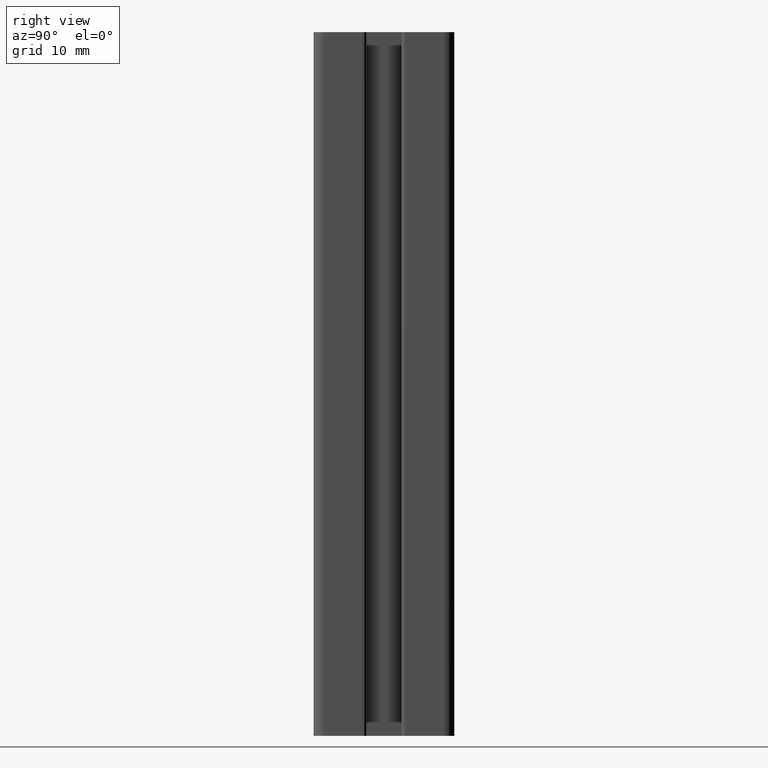
[diagram: clean part render]
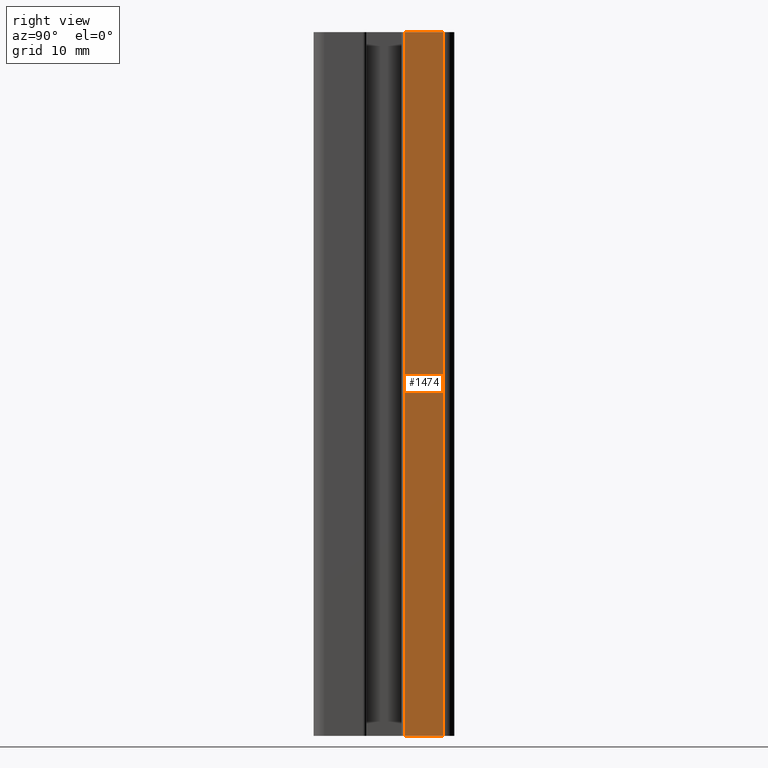
[diagram: same view with one face highlighted and labeled with its STEP entity id]
A machine part, right view. The second image highlights one B-rep face of the part: STEP entity #1474.
In plain terms, the highlighted planar face has unit normal (1, 0, 0).
Its self-contained STEP definition (entity closure, byte-faithful):
#51=PLANE('',#1617);
#122=FACE_OUTER_BOUND('',#198,.T.);
#198=EDGE_LOOP('',(#1197,#1198,#1199,#1200));
#318=LINE('',#2428,#462);
#344=LINE('',#2488,#488);
#345=LINE('',#2490,#489);
#346=LINE('',#2491,#490);
#462=VECTOR('',#1981,100.);
#488=VECTOR('',#2037,5.49999999999999);
#489=VECTOR('',#2038,100.);
#490=VECTOR('',#2039,5.49999999999999);
#690=VERTEX_POINT('',#2422);
#692=VERTEX_POINT('',#2426);
#711=VERTEX_POINT('',#2487);
#712=VERTEX_POINT('',#2489);
#888=EDGE_CURVE('',#690,#692,#318,.T.);
#918=EDGE_CURVE('',#711,#692,#344,.T.);
#919=EDGE_CURVE('',#711,#712,#345,.T.);
#920=EDGE_CURVE('',#712,#690,#346,.T.);
#1197=ORIENTED_EDGE('',*,*,#888,.T.);
#1198=ORIENTED_EDGE('',*,*,#918,.F.);
#1199=ORIENTED_EDGE('',*,*,#919,.T.);
#1200=ORIENTED_EDGE('',*,*,#920,.T.);
#1474=ADVANCED_FACE('',(#122),#51,.T.);
#1617=AXIS2_PLACEMENT_3D('',#2486,#2035,#2036);
#1981=DIRECTION('',(0.,0.,-1.));
#2035=DIRECTION('center_axis',(1.,2.61228946970625E-16,0.));
#2036=DIRECTION('ref_axis',(-1.77635683940025E-16,1.,0.));
#2037=DIRECTION('',(2.61228946970625E-16,-1.,0.));
#2038=DIRECTION('',(0.,0.,1.));
#2039=DIRECTION('',(2.61228946970625E-16,-1.,0.));
#2422=CARTESIAN_POINT('',(10.,3.00000000000001,100.));
#2426=CARTESIAN_POINT('',(10.,3.00000000000001,0.));
#2428=CARTESIAN_POINT('',(10.,3.,0.));
#2486=CARTESIAN_POINT('Origin',(10.,-8.5,0.));
#2487=CARTESIAN_POINT('',(10.,8.5,0.));
#2488=CARTESIAN_POINT('',(10.,-4.25,0.));
#2489=CARTESIAN_POINT('',(10.,8.5,100.));
#2490=CARTESIAN_POINT('',(10.,8.5,0.));
#2491=CARTESIAN_POINT('',(10.,-4.25,100.));